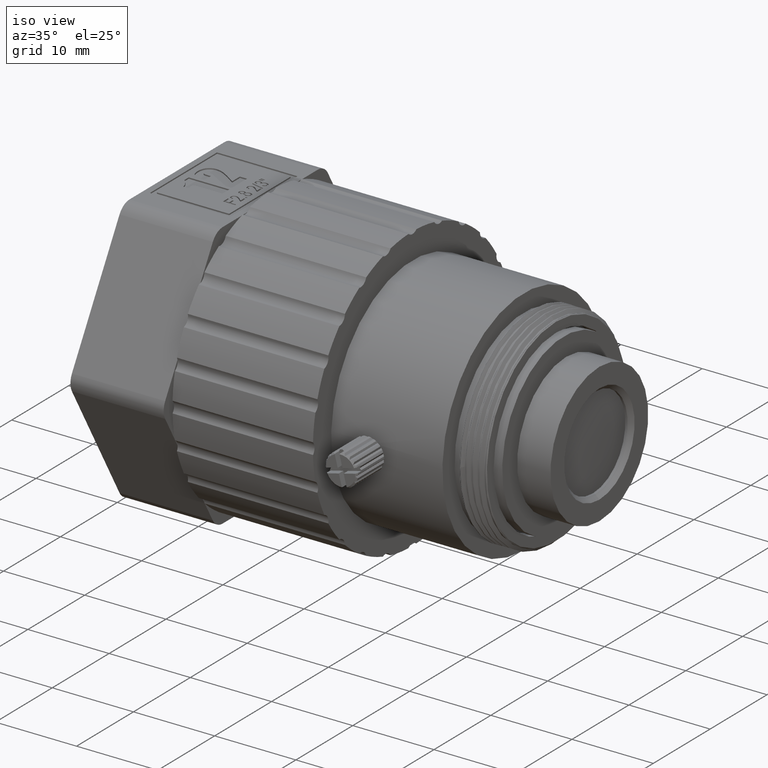
[diagram: clean part render]
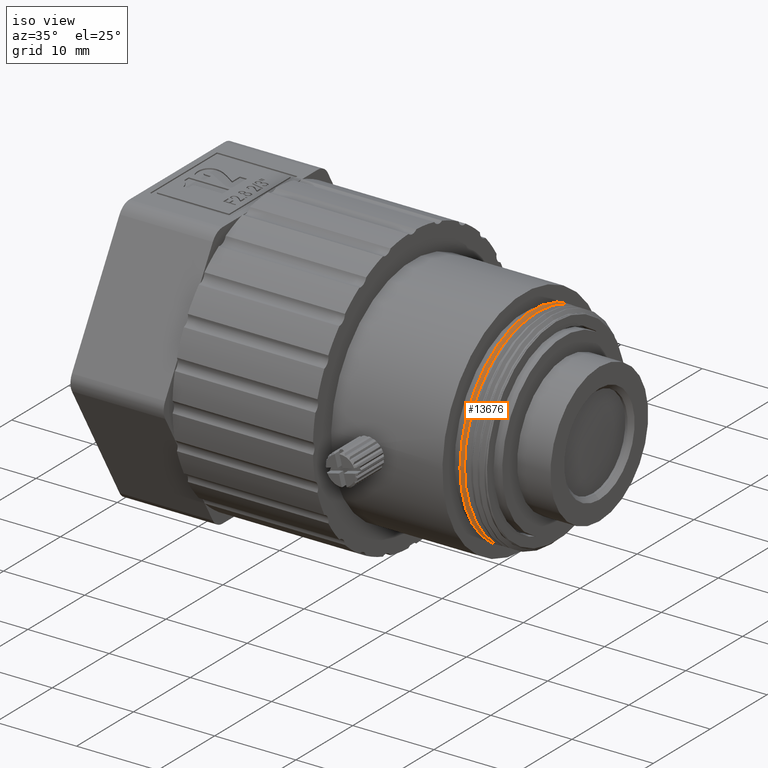
[diagram: same view with one face highlighted and labeled with its STEP entity id]
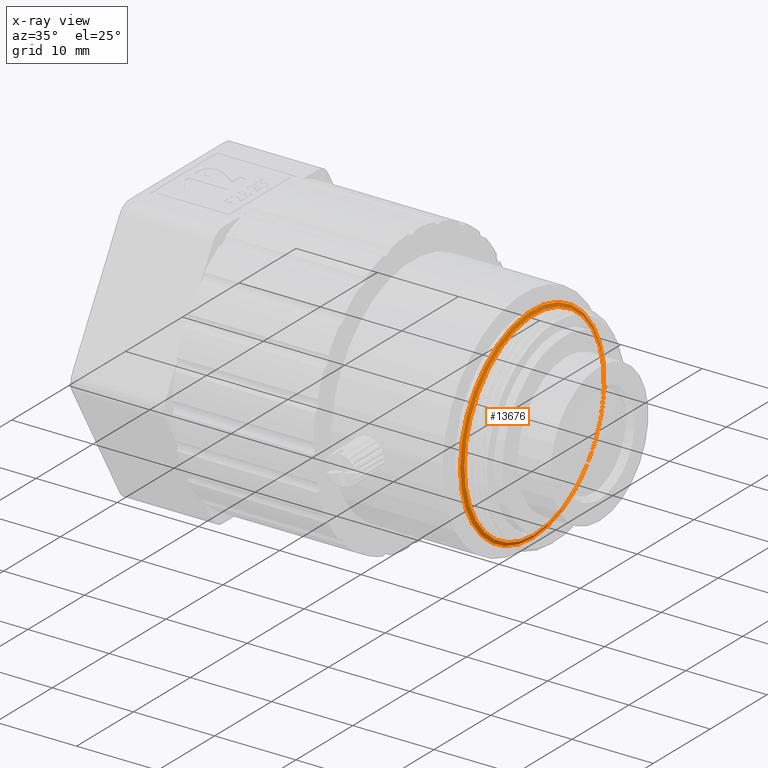
[diagram: x-ray of the same camera — body ghosted, the highlighted face saturated]
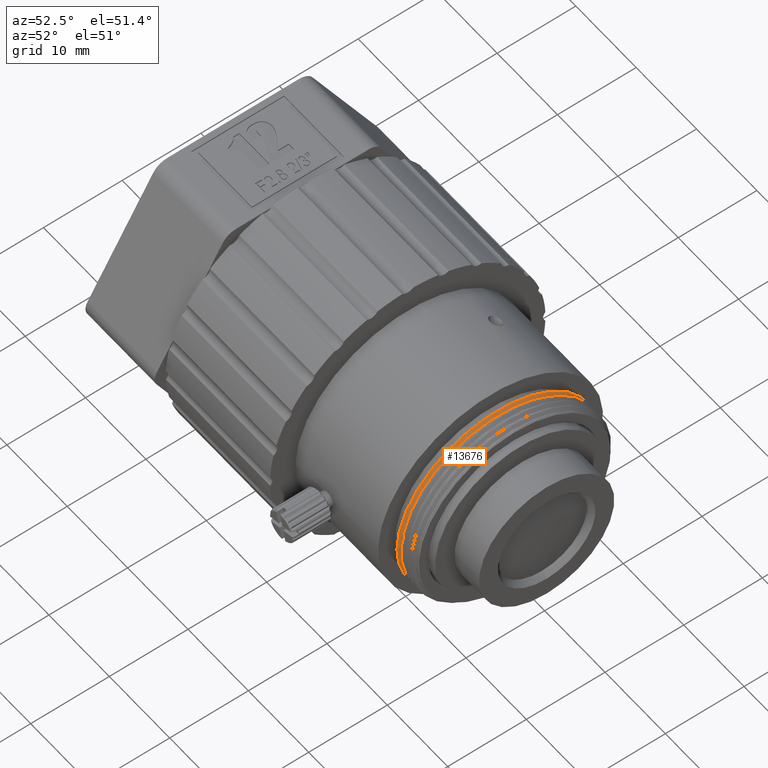
[diagram: same view with one face highlighted and labeled with its STEP entity id]
A machine part, iso view. The second image highlights one B-rep face of the part: STEP entity #13676.
The next image is the same camera in x-ray: the body ghosted, the highlighted face saturated — about 3% of this face is hidden behind the body in this view.
A second angle (auxiliary view) of the same face is appended — the face is thin or edge-on in the first view.
In plain terms, the highlighted conical surface has half-angle 60 deg.
Its self-contained STEP definition (entity closure, byte-faithful):
#732 = FACE_BOUND ( 'NONE', #13219, .T. ) ;
#1932 = CONICAL_SURFACE ( 'NONE', #3781, 12.70000270789407004, 1.047197551142030614 ) ;
#2092 = VERTEX_POINT ( 'NONE', #9662 ) ;
#3059 = CARTESIAN_POINT ( 'NONE',  ( 10466.43584085083239, -3043.346037136861469, 0.000000000000000000 ) ) ;
#3171 = VERTEX_POINT ( 'NONE', #8485 ) ;
#3781 = AXIS2_PLACEMENT_3D ( 'NONE', #3059, #7477, #8364 ) ;
#5153 = CIRCLE ( 'NONE', #9352, 12.27037758289561964 ) ;
#5257 = DIRECTION ( 'NONE',  ( -1.000000000000000000, -6.829618527949360810E-17, -0.000000000000000000 ) ) ;
#5846 = CIRCLE ( 'NONE', #10509, 12.70000270789406471 ) ;
#6365 = DIRECTION ( 'NONE',  ( 0.000000000000000000, 0.000000000000000000, -1.000000000000000000 ) ) ;
#7477 = DIRECTION ( 'NONE',  ( -1.000000000000000000, 0.000000000000000000, -6.829618527949359578E-17 ) ) ;
#7748 = EDGE_LOOP ( 'NONE', ( #9371 ) ) ;
#8364 = DIRECTION ( 'NONE',  ( 0.000000000000000000, 0.000000000000000000, 1.000000000000000000 ) ) ;
#8416 = CARTESIAN_POINT ( 'NONE',  ( 10466.43584085083239, -3043.346037136861469, 0.000000000000000000 ) ) ;
#8485 = CARTESIAN_POINT ( 'NONE',  ( 10466.68388503243295, -3055.616414719757358, 0.000000000000000000 ) ) ;
#8512 = FACE_OUTER_BOUND ( 'NONE', #7748, .T. ) ;
#9134 = ORIENTED_EDGE ( 'NONE', *, *, #12166, .T. ) ;
#9352 = AXIS2_PLACEMENT_3D ( 'NONE', #9425, #5257, #9634 ) ;
#9371 = ORIENTED_EDGE ( 'NONE', *, *, #12684, .F. ) ;
#9425 = CARTESIAN_POINT ( 'NONE',  ( 10466.68388503243295, -3043.346037136861469, 0.000000000000000000 ) ) ;
#9634 = DIRECTION ( 'NONE',  ( 0.000000000000000000, -1.000000000000000000, 0.000000000000000000 ) ) ;
#9662 = CARTESIAN_POINT ( 'NONE',  ( 10466.43584085083239, -3043.346037136861469, -12.70000270789406471 ) ) ;
#9810 = DIRECTION ( 'NONE',  ( -1.000000000000000000, 0.000000000000000000, 0.000000000000000000 ) ) ;
#10509 = AXIS2_PLACEMENT_3D ( 'NONE', #8416, #9810, #6365 ) ;
#12166 = EDGE_CURVE ( 'NONE', #3171, #3171, #5153, .T. ) ;
#12684 = EDGE_CURVE ( 'NONE', #2092, #2092, #5846, .T. ) ;
#13219 = EDGE_LOOP ( 'NONE', ( #9134 ) ) ;
#13676 = ADVANCED_FACE ( 'NONE', ( #732, #8512 ), #1932, .T. ) ;